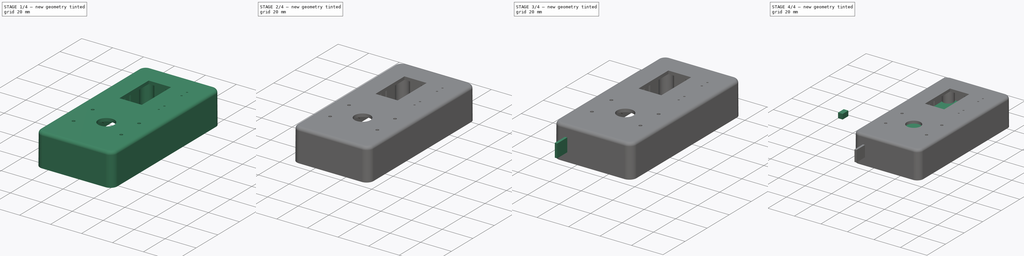
[diagram: build sequence overview — one tinted view per stage of 4, left to right]
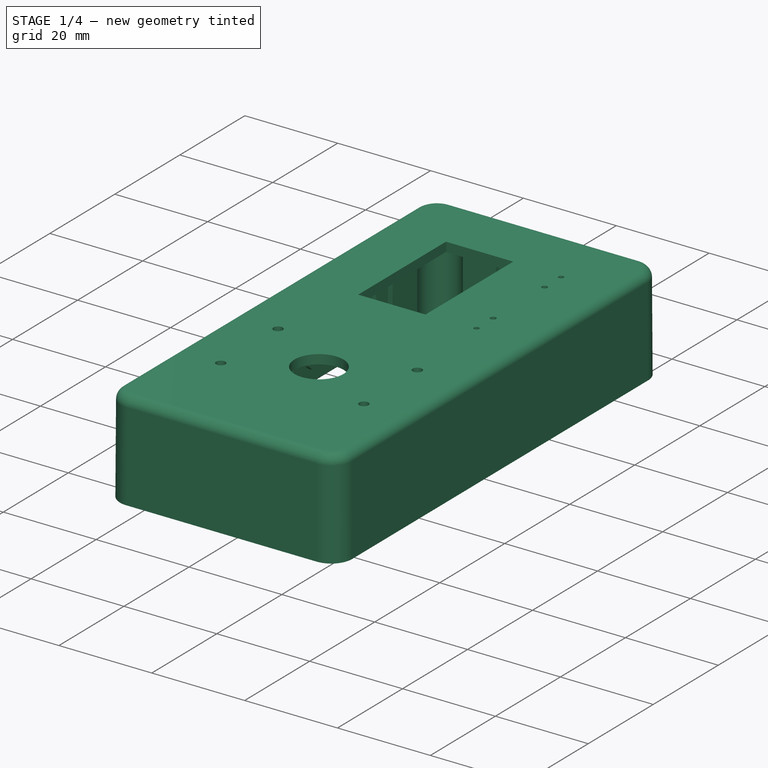
[diagram: stage 1 of 4 — iso view after this stage's code; geometry added in this stage tinted green]
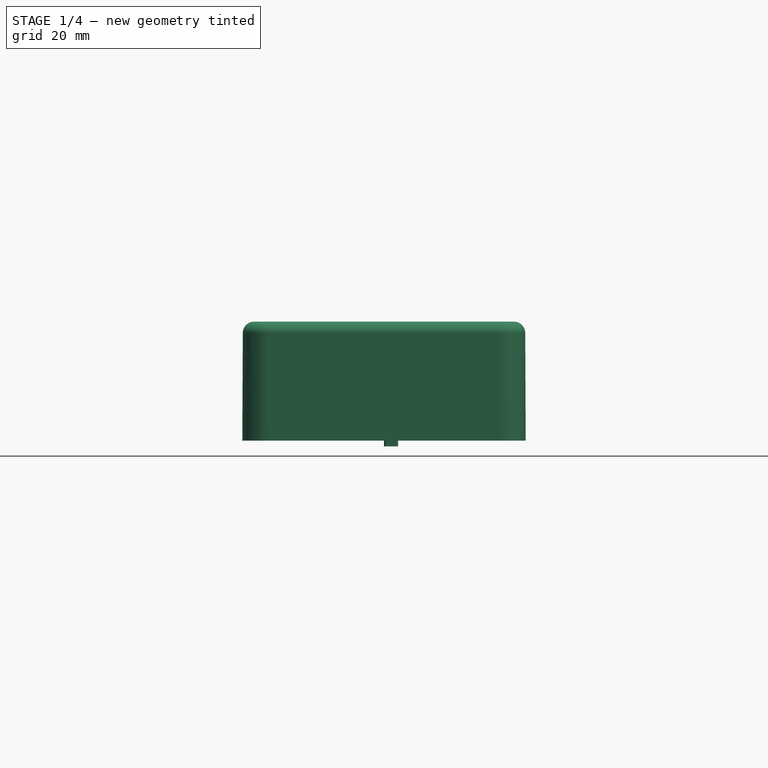
[diagram: stage 1 of 4 — front view after this stage's code; geometry added in this stage tinted green]
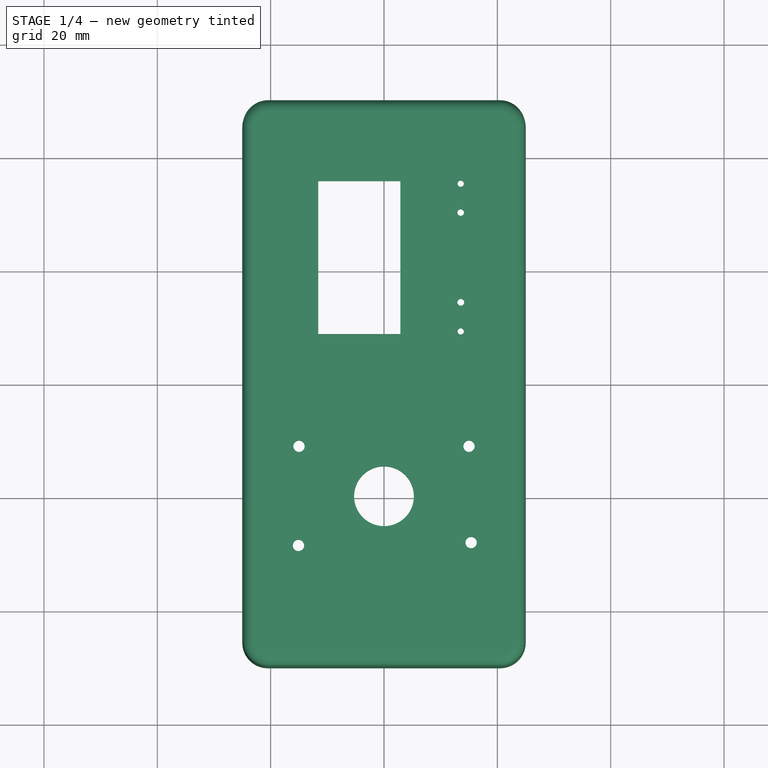
[diagram: stage 1 of 4 — top view after this stage's code; geometry added in this stage tinted green]
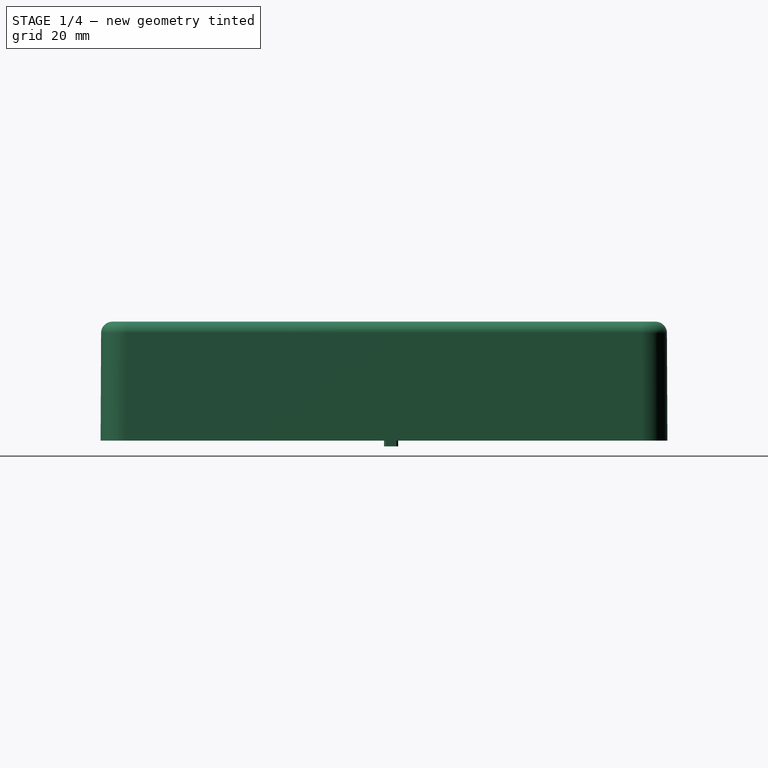
[diagram: stage 1 of 4 — right view after this stage's code; geometry added in this stage tinted green]
FCSTD DOCUMENT  (FreeCAD 0.16R6612 (Git))
Label: Layout_landscape
License: All rights reserved
LicenseURL: http://en.wikipedia.org/wiki/All_rights_reserved
objects: Part::Feature×20, Sketcher::SketchObject×8, PartDesign::Pad×7, App::DocumentObjectGroup×4, PartDesign::Chamfer×3, Part::Part2DObjectPython×1, PartDesign::Pocket×1
note: 48 computed .brp shape members not serialized (recipe doc carries the construction recipe); baked Part::Feature solids carry a one-line shape summary decoded from their .brp

FEATURE [Part::Feature] Pad002001002001003002001  label="header001"
  Placement = pos=(-1,81.55,9) rot=(0,0,1;1.5708rad)
  shape: bbox 1.5 x 9.143 x 8.5 mm, 6 faces (baked)
FEATURE [Part::Feature] Pocket002001  label="Pocket003"
  Placement = pos=(70.0631,76.8505,36.1887) rot=(0,0,1;3.14159rad)
  shape: bbox 17.5 x 30.5 x 4.75 mm, 16 faces (baked)
FEATURE [Part::Feature] Pocket003001  label="button_rect_A"
  Placement = pos=(11.6,8.62,22) rot=(0,0,1;0rad)
  shape: bbox 3.5 x 6.1 x 14.45 mm, 48 faces (baked)
FEATURE [Part::Feature] Pocket003001001  label="button_rect_B"
  Placement = pos=(11.6,29.52,22) rot=(0,0,1;0rad)
  shape: bbox 3.5 x 6.1 x 14.45 mm, 48 faces (baked)
FEATURE [App::DocumentObjectGroup] Group002  label="Buttons"
  Group = -> [Pocket003001,Pocket003001001]
FEATURE [Part::Feature] Chamfer002001  label="Chamfer003"
  shape: bbox 2.5 x 2.5 x 10.5 mm, 28 faces (baked)
FEATURE [Sketcher::SketchObject] Sketch005
  sketch-geometry (4):
    g0: LineSegment StartX=0 StartY=2.5 StartZ=0 EndX=2.5 EndY=2.5 EndZ=0
    g1: LineSegment StartX=2.5 StartY=2.5 StartZ=0 EndX=2.5 EndY=0 EndZ=0
    g2: LineSegment StartX=2.5 StartY=0 StartZ=0 EndX=0 EndY=0 EndZ=0
    g3: LineSegment StartX=0 StartY=0 StartZ=0 EndX=0 EndY=2.5 EndZ=0
  constraints (11):
    c: Coincident(g0,g1)
    c: Coincident(g1,g2)
    c: Coincident(g2,g3)
    c: Coincident(g3,g0)
    c: Horizontal(g0)
    c: Horizontal(g2)
    c: Vertical(g1)
    c: Vertical(g3)
    c: Coincident(g2,g-1)
    c: DistanceX(g0,g0) = 2.5
    c: DistanceY(g1,g1) = 2.5
FEATURE [PartDesign::Pad] Pad002001002001003002002
  Length = 2.5
  Length2 = 100
  Sketch = -> Sketch005
  Type = 0
FEATURE [PartDesign::Chamfer] Chamfer
  Base = -> Pad002001002001003002002 [Edge8,Edge5,Edge1,Edge2]
  Size = 0.3
FEATURE [Part::Feature] Chamfer002003
  shape: bbox 2.5 x 2.5 x 10.5 mm, 28 faces (baked)
FEATURE [Part::Feature] Fusion008  label="OLED_display"
  Placement = pos=(11.5,8.6171,17.2) rot=(0,0,1;1.5708rad)
  shape: bbox 27.3 x 27 x 10.6 mm, 133 faces (baked)
FEATURE [Sketcher::SketchObject] Sketch008
  Placement = pos=(0,0,22) rot=(0,0,1;0rad)
  Support = -> _591A_Box [Face619]
  expr: Constraints[19] = 34.81 / 2
  sketch-geometry (19):
    g0: LineSegment StartX=-11.5957 StartY=35.6158 StartZ=0 EndX=2.9001 EndY=35.6158 EndZ=0
    g1: LineSegment StartX=2.9001 StartY=35.6158 StartZ=0 EndX=2.9001 EndY=8.63497 EndZ=0
    g2: LineSegment StartX=2.9001 StartY=8.63497 StartZ=0 EndX=-11.5957 EndY=8.63497 EndZ=0
    g3: LineSegment StartX=-11.5957 StartY=8.63497 StartZ=0 EndX=-11.5957 EndY=35.6158 EndZ=0
    g4: Circle CenterX=0 CenterY=-20 CenterZ=0 NormalX=0 NormalY=0 NormalZ=1 Radius=5.27045
    g5: Circle CenterX=13.546 CenterY=9.10826 CenterZ=0 NormalX=0 NormalY=0 NormalZ=1 Radius=0.555368
    g6: Circle CenterX=13.546 CenterY=14.2398 CenterZ=0 NormalX=0 NormalY=0 NormalZ=1 Radius=0.600124
    g7: Circle CenterX=13.535 CenterY=30.0728 CenterZ=0 NormalX=0 NormalY=0 NormalZ=1 Radius=0.583124
    g8: Circle CenterX=13.535 CenterY=35.1671 CenterZ=0 NormalX=0 NormalY=0 NormalZ=1 Radius=0.552354
    g9: LineSegment [constr] StartX=13.535 StartY=35.1671 StartZ=0 EndX=13.535 EndY=30.0728 EndZ=0
    g10: LineSegment [constr] StartX=13.546 StartY=14.2398 StartZ=0 EndX=13.546 EndY=9.10826 EndZ=0
    g11: Circle [constr] CenterX=0 CenterY=-20 CenterZ=0 NormalX=0 NormalY=0 NormalZ=1 Radius=11.5
    g12: Circle [constr] CenterX=0 CenterY=-20 CenterZ=0 NormalX=0 NormalY=0 NormalZ=1 Radius=18.405
    g13: Circle [constr] CenterX=0 CenterY=-20 CenterZ=0 NormalX=0 NormalY=0 NormalZ=1 Radius=17.405
    g14: Circle CenterX=-15 CenterY=-11.172 CenterZ=0 NormalX=0 NormalY=0 NormalZ=1 Radius=1
    g15: Circle CenterX=-15.0909 CenterY=-28.6717 CenterZ=0 NormalX=0 NormalY=0 NormalZ=1 Radius=1
    g16: Circle CenterX=15 CenterY=-11.172 CenterZ=0 NormalX=0 NormalY=0 NormalZ=1 Radius=1
    g17: Circle CenterX=15.3694 CenterY=-28.168 CenterZ=0 NormalX=0 NormalY=0 NormalZ=1 Radius=1
    g18: LineSegment [constr] StartX=-15 StartY=-11.172 StartZ=0 EndX=15 EndY=-11.172 EndZ=0
  constraints (36):
    c: Coincident(g0,g1)
    c: Coincident(g1,g2)
    c: Coincident(g2,g3)
    c: Coincident(g3,g0)
    c: Horizontal(g0)
    c: Horizontal(g2)
    c: Vertical(g1)
    c: Vertical(g3)
    c: Coincident(g9,g8)
    c: Coincident(g9,g7)
    c: Vertical(g9)
    c: Coincident(g10,g6)
    c: Coincident(g10,g5)
    c: Vertical(g10)
    c: Coincident(g11,g4)
    c: Radius(g11) = 11.5
    c: Coincident(g12,g4)
    c: Radius(g12) = 18.405
    c: Coincident(g13,g4)
    c: Radius(g13) = 17.405
    c: PointOnObject(g14,g13)
    c: Radius(g14) = 1  'data_in'
    c: PointOnObject(g15,g13)
    c: Radius(g15) = 1  'data_out'
    c: Distance(g15,g14) = 17.5
    c: PointOnObject(g16,g13)
    c: Radius(g16) = 1  'ground'
    c: PointOnObject(g17,g13)
    c: Radius(g17) = 1  'vin'
    c: Distance(g14,g16) = 30
    c: Distance(g17,g16) = 17
    c: PointOnObject(g4,g-2)
    c: DistanceY(g4,g-1) = 20
    c: Coincident(g18,g14)
    c: Coincident(g18,g16)
    c: Horizontal(g18)
FEATURE [PartDesign::Pocket] Pocket
  Length = 5
  Placement = pos=(0,0,1) rot=(1,0,0;3.14159rad)
  Sketch = -> Sketch008
  Type = 1
FEATURE [App::DocumentObjectGroup] Group  label="Box"
  Group = -> [_591A_Lid,_591A_Box,Pocket]
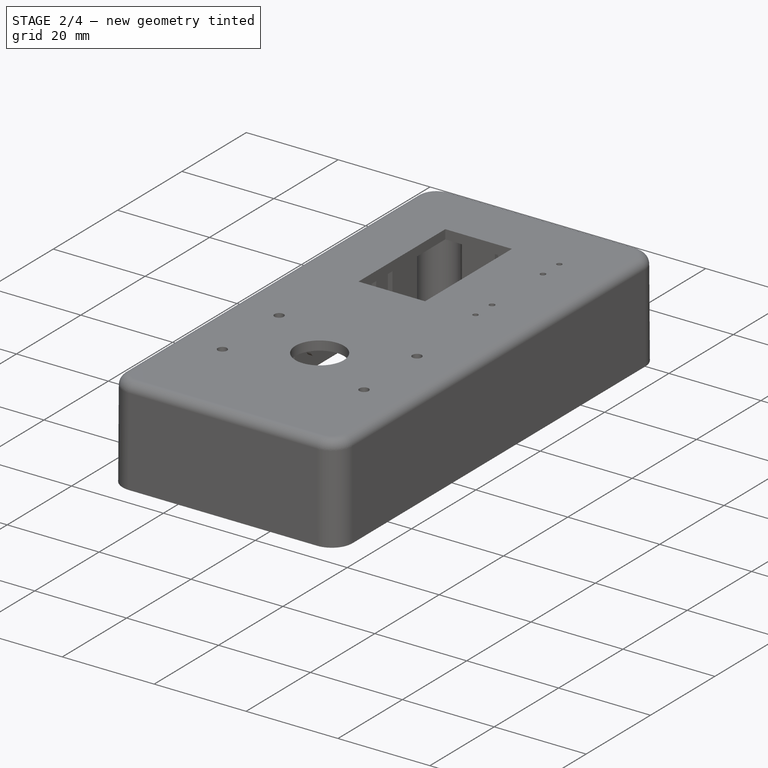
[diagram: stage 2 of 4 — iso view after this stage's code; geometry added in this stage tinted green]
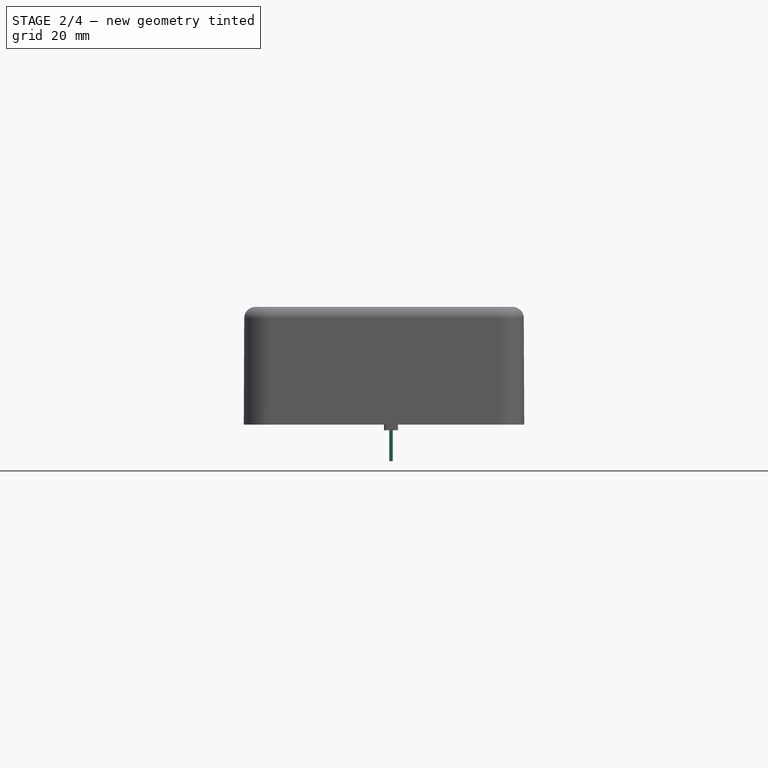
[diagram: stage 2 of 4 — front view after this stage's code; geometry added in this stage tinted green]
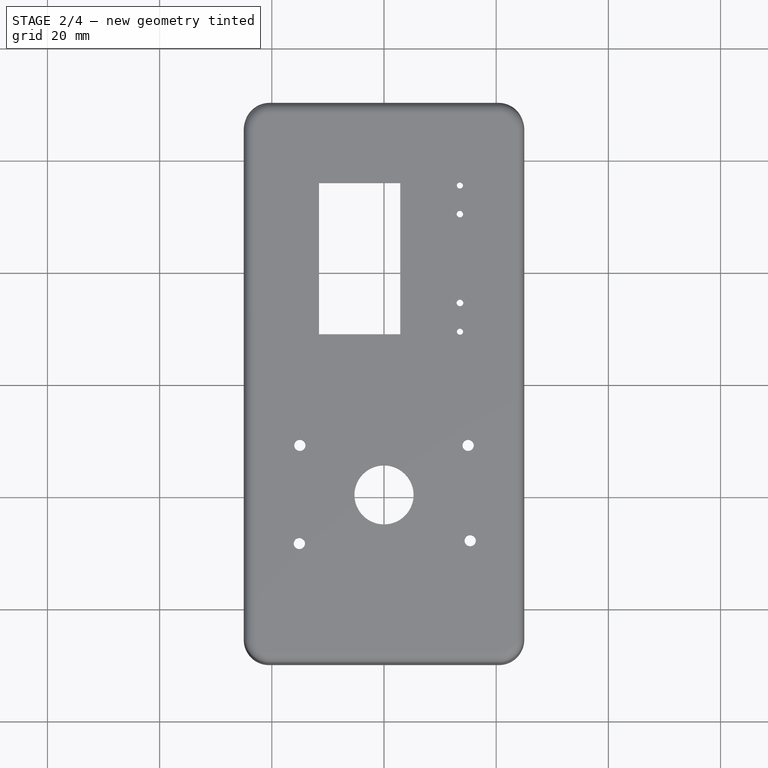
[diagram: stage 2 of 4 — top view after this stage's code; geometry added in this stage tinted green]
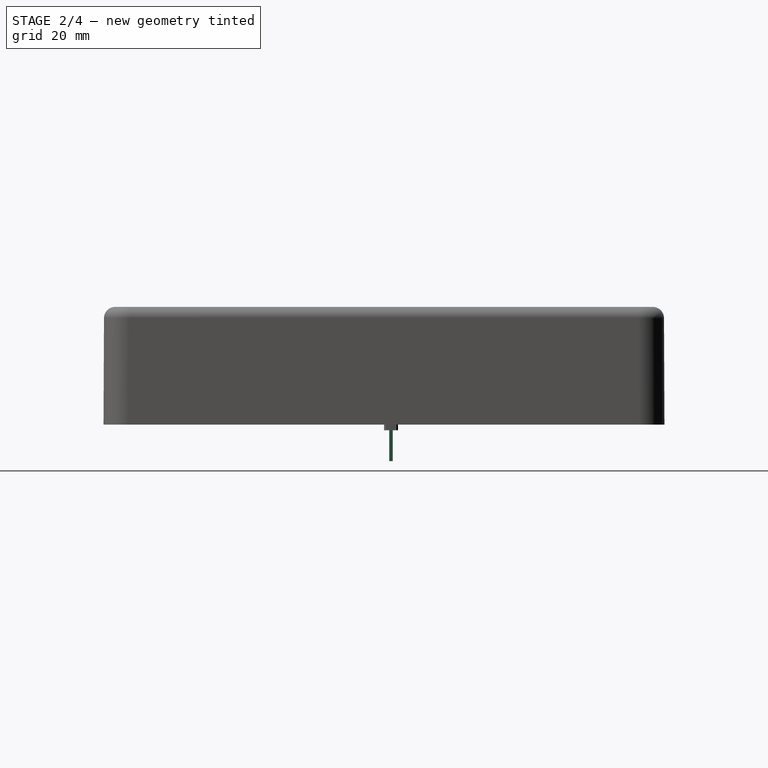
[diagram: stage 2 of 4 — right view after this stage's code; geometry added in this stage tinted green]
FEATURE [Sketcher::SketchObject] Sketch006
  ExternalGeometry = -> [Chamfer]
  Placement = pos=(0,0,2.5) rot=(0,0,1;0rad)
  Support = -> Chamfer [Face5]
  sketch-geometry (8):
    g0: GeomPoint [constr] X=1.25 Y=2.5 Z=0
    g1: LineSegment [constr] StartX=1.25 StartY=2.5 StartZ=0 EndX=1.25 EndY=0.215171 EndZ=0
    g2: GeomPoint [constr] X=2.5 Y=1.25 Z=0
    g3: LineSegment [constr] StartX=2.5 StartY=1.25 StartZ=0 EndX=1.25 EndY=1.25 EndZ=0
    g4: LineSegment StartX=0.93 StartY=1.57 StartZ=0 EndX=1.57 EndY=1.57 EndZ=0
    g5: LineSegment StartX=1.57 StartY=1.57 StartZ=0 EndX=1.57 EndY=0.93 EndZ=0
    g6: LineSegment StartX=1.57 StartY=0.93 StartZ=0 EndX=0.93 EndY=0.93 EndZ=0
    g7: LineSegment StartX=0.93 StartY=0.93 StartZ=0 EndX=0.93 EndY=1.57 EndZ=0
  constraints (18):
    c: Symmetric(g-3,g-3,g0)
    c: Coincident(g1,g0)
    c: Vertical(g1)
    c: Symmetric(g-5,g-5,g2)
    c: Coincident(g3,g2)
    c: PointOnObject(g3,g1)
    c: Horizontal(g3)
    c: Coincident(g4,g5)
    c: Coincident(g5,g6)
    c: Coincident(g6,g7)
    c: Coincident(g7,g4)
    c: Horizontal(g4)
    c: Horizontal(g6)
    c: Vertical(g5)
    c: Vertical(g7)
    c: DistanceY(g7,g7) = 0.64
    c: DistanceX(g4,g4) = 0.64
    c: Symmetric(g6,g4,g3)
FEATURE [PartDesign::Pad] Pad002001002001003002003
  Length = 2.5
  Length2 = 100
  Sketch = -> Sketch006
  Type = 0
FEATURE [PartDesign::Chamfer] Chamfer002002
  Base = -> Pad002001002001003002003 [Edge1,Edge2,Edge3,Edge4]
  Size = 0.1
FEATURE [Sketcher::SketchObject] Sketch007
  ExternalGeometry = -> [Chamfer002002]
  Placement = pos=(0,0,0) rot=(1,0,0;3.14159rad)
  Support = -> Chamfer002002 [Face19]
  sketch-geometry (8):
    g0: GeomPoint [constr] X=2.5 Y=-1.25 Z=0
    g1: GeomPoint [constr] X=1.25 Y=-2.5 Z=0
    g2: LineSegment [constr] StartX=1.25 StartY=-2.5 StartZ=0 EndX=1.25 EndY=-0.861225 EndZ=0
    g3: LineSegment [constr] StartX=2.5 StartY=-1.25 StartZ=0 EndX=1.25 EndY=-1.25 EndZ=0
    g4: LineSegment StartX=0.93 StartY=-0.93 StartZ=0 EndX=1.57 EndY=-0.93 EndZ=0
    g5: LineSegment StartX=1.57 StartY=-0.93 StartZ=0 EndX=1.57 EndY=-1.57 EndZ=0
    g6: LineSegment StartX=1.57 StartY=-1.57 StartZ=0 EndX=0.93 EndY=-1.57 EndZ=0
    g7: LineSegment StartX=0.93 StartY=-1.57 StartZ=0 EndX=0.93 EndY=-0.93 EndZ=0
  constraints (18):
    c: Symmetric(g-4,g-4,g0)
    c: Symmetric(g-3,g-3,g1)
    c: Coincident(g2,g1)
    c: Vertical(g2)
    c: Coincident(g3,g0)
    c: PointOnObject(g3,g2)
    c: Horizontal(g3)
    c: Coincident(g4,g5)
    c: Coincident(g5,g6)
    c: Coincident(g6,g7)
    c: Coincident(g7,g4)
    c: Horizontal(g4)
    c: Horizontal(g6)
    c: Vertical(g5)
    c: Vertical(g7)
    c: DistanceX(g4,g4) = 0.64
    c: DistanceY(g5,g5) = 0.64
    c: Symmetric(g6,g4,g3)
FEATURE [PartDesign::Pad] Pad002
  Length = 5.5
  Length2 = 100
  Sketch = -> Sketch007
  Type = 0
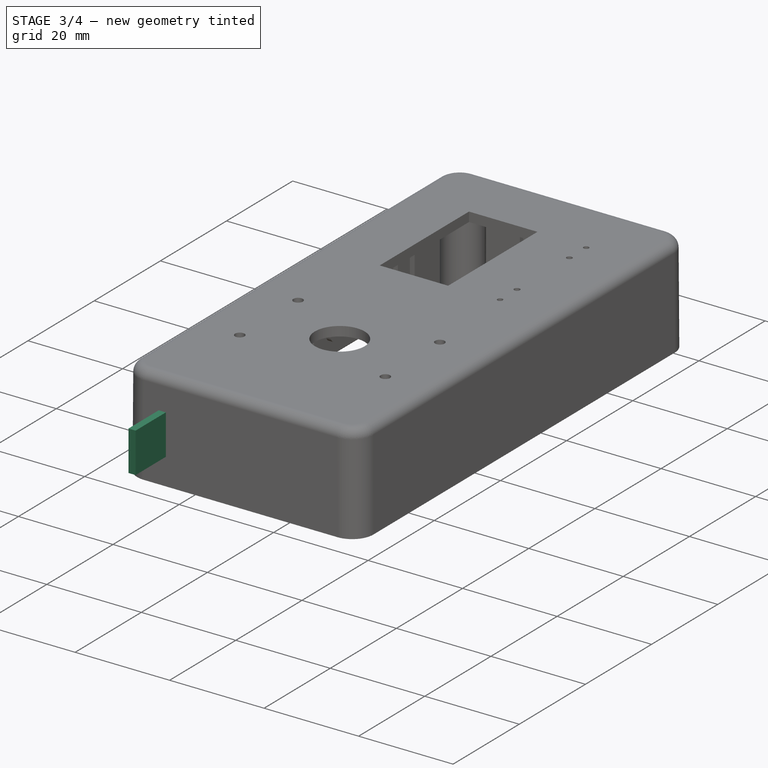
[diagram: stage 3 of 4 — iso view after this stage's code; geometry added in this stage tinted green]
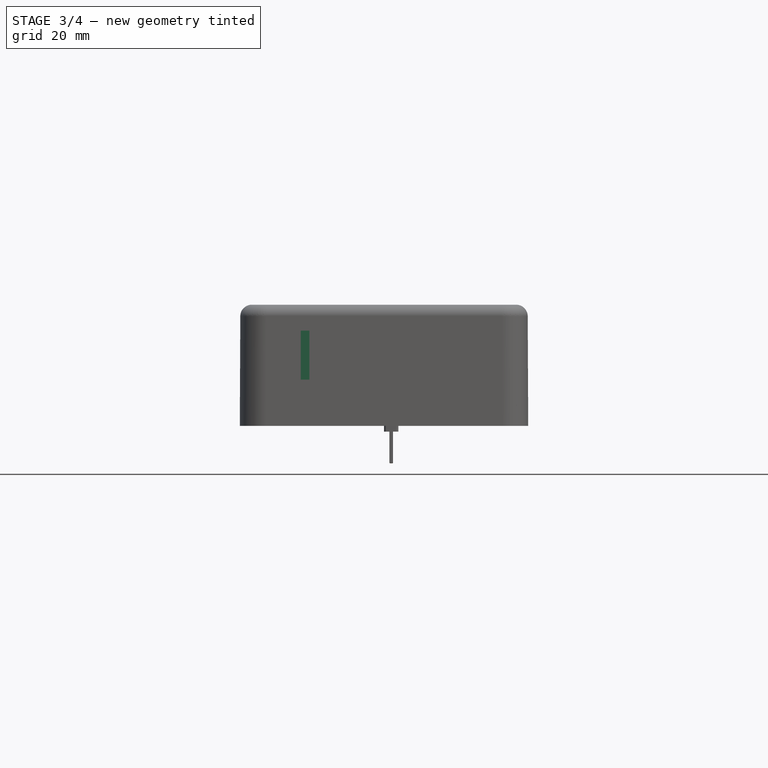
[diagram: stage 3 of 4 — front view after this stage's code; geometry added in this stage tinted green]
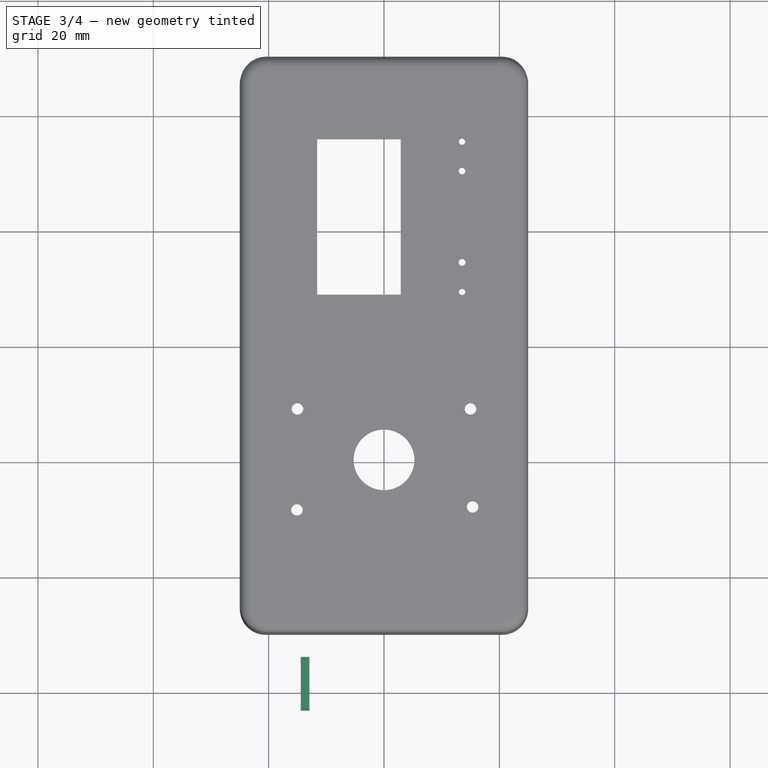
[diagram: stage 3 of 4 — top view after this stage's code; geometry added in this stage tinted green]
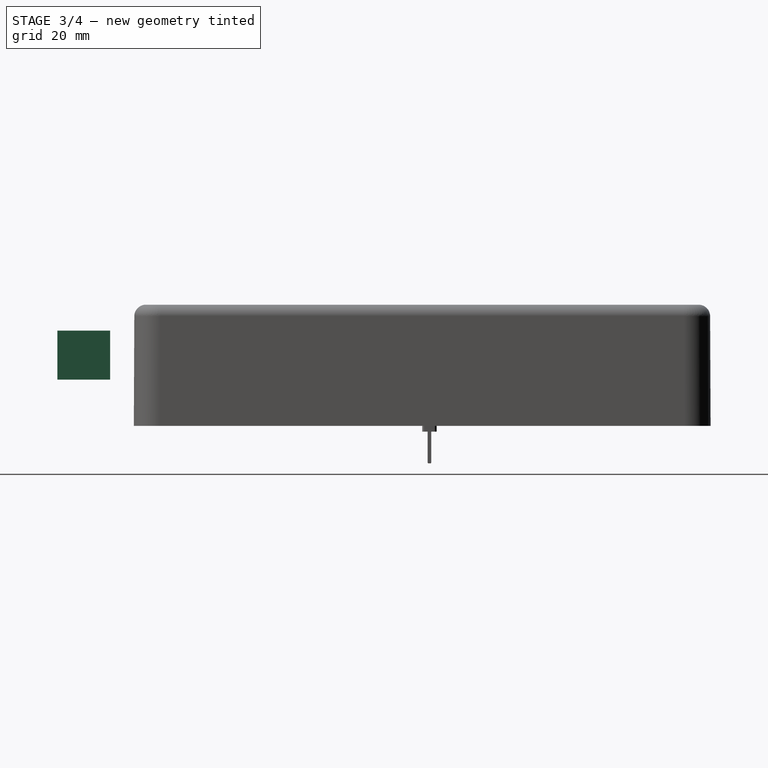
[diagram: stage 3 of 4 — right view after this stage's code; geometry added in this stage tinted green]
FEATURE [Part::Feature] Pad002001002001003001  label="Pad002001002001004"
  Placement = pos=(0.4,0,3.7) rot=(0,0,1;0rad)
  shape: bbox 1.5 x 2.9 x 1.5 mm, 6 faces (baked)
FEATURE [Part::Feature] Fillet001001  label="Fillet002"
  Placement = pos=(-15,-8,0) rot=(0,0,1;0rad)
  shape: bbox 30 x 48 x 5.3 mm, 12 faces (baked)
FEATURE [Sketcher::SketchObject] Sketch004
  Placement = pos=(0,0,9) rot=(0,0,1;1.5708rad)
  sketch-geometry (4):
    g0: LineSegment StartX=-63.2551 StartY=14.4324 StartZ=0 EndX=-54.1124 EndY=14.4324 EndZ=0
    g1: LineSegment StartX=-54.1124 StartY=14.4324 StartZ=0 EndX=-54.1124 EndY=12.9324 EndZ=0
    g2: LineSegment StartX=-54.1124 StartY=12.9324 StartZ=0 EndX=-63.2551 EndY=12.9324 EndZ=0
    g3: LineSegment StartX=-63.2551 StartY=12.9324 StartZ=0 EndX=-63.2551 EndY=14.4324 EndZ=0
  constraints (9):
    c: Coincident(g0,g1)
    c: Coincident(g1,g2)
    c: Coincident(g2,g3)
    c: Coincident(g3,g0)
    c: Horizontal(g0)
    c: Horizontal(g2)
    c: Vertical(g1)
    c: Vertical(g3)
    c: DistanceY(g1,g1) = 1.5
FEATURE [PartDesign::Pad] Pad002001002001003002  label="header"
  Length = 8.5
  Length2 = 100
  Placement = pos=(0,0,9) rot=(0,0,1;1.5708rad)
  Sketch = -> Sketch004
  Type = 0
FEATURE [PartDesign::Chamfer] Chamfer002
  Base = -> Pad002 [Edge1,Edge2,Edge3,Edge4]
  Size = 0.1
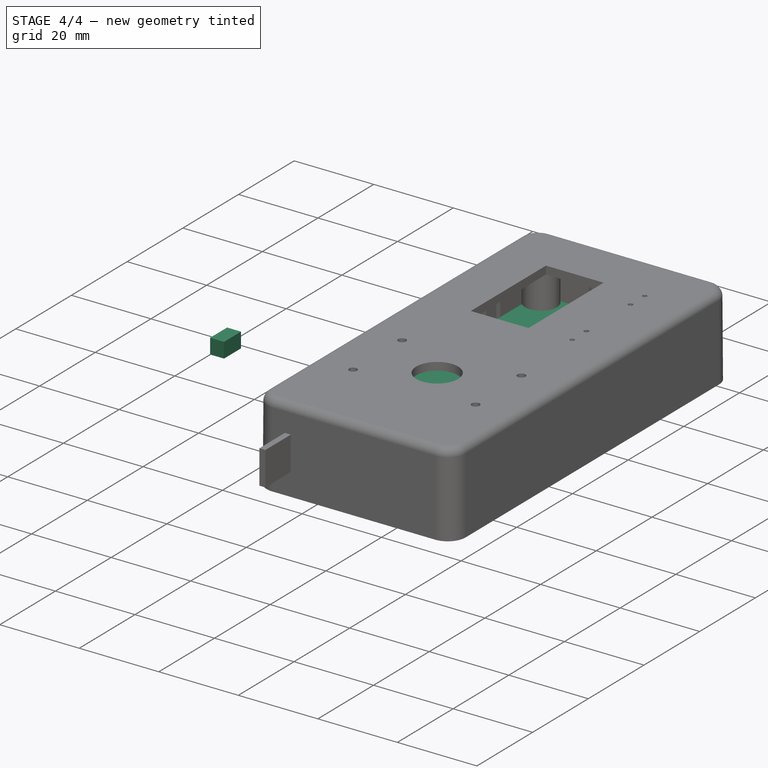
[diagram: stage 4 of 4 — iso view after this stage's code; geometry added in this stage tinted green]
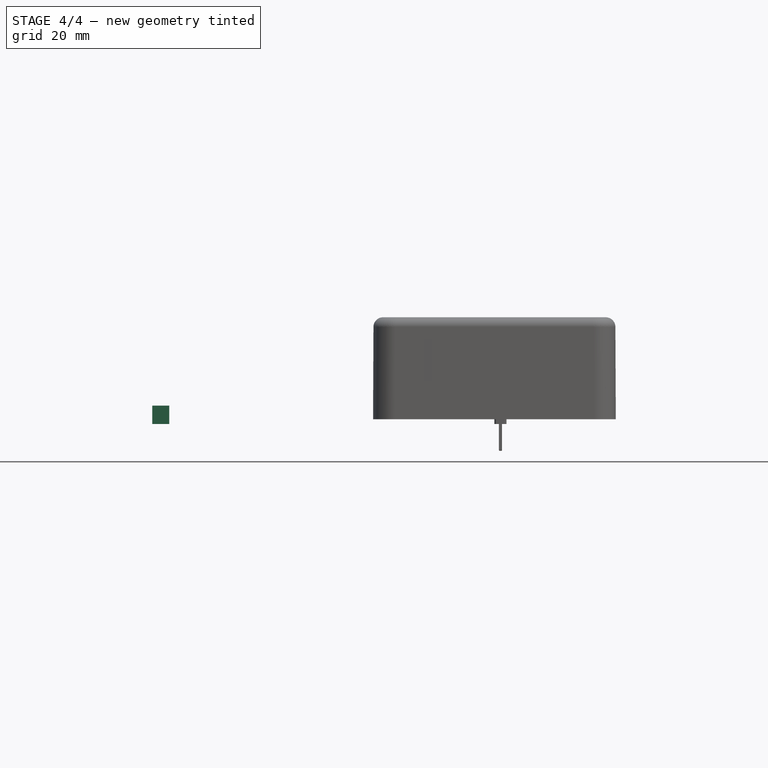
[diagram: stage 4 of 4 — front view after this stage's code; geometry added in this stage tinted green]
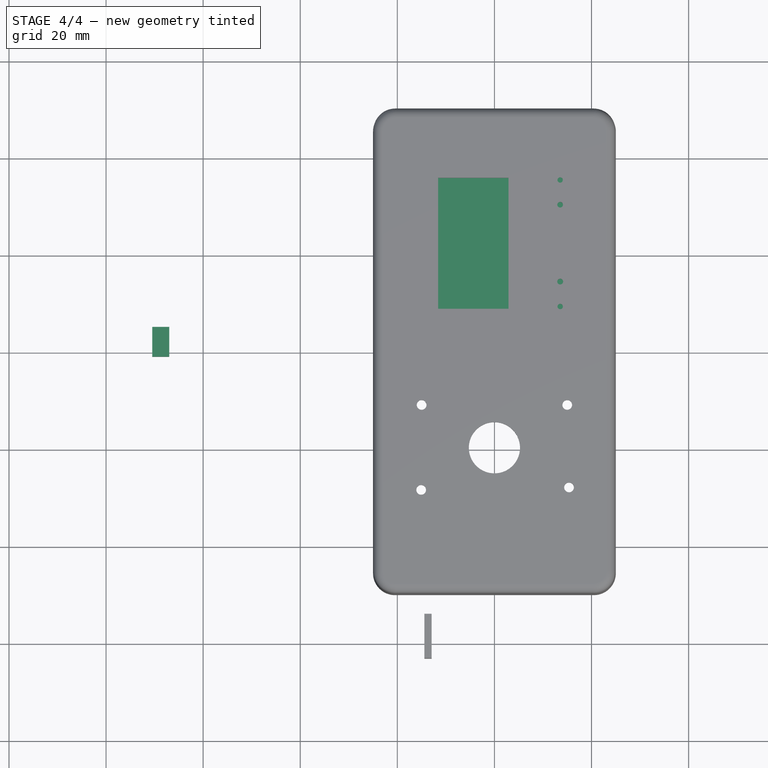
[diagram: stage 4 of 4 — top view after this stage's code; geometry added in this stage tinted green]
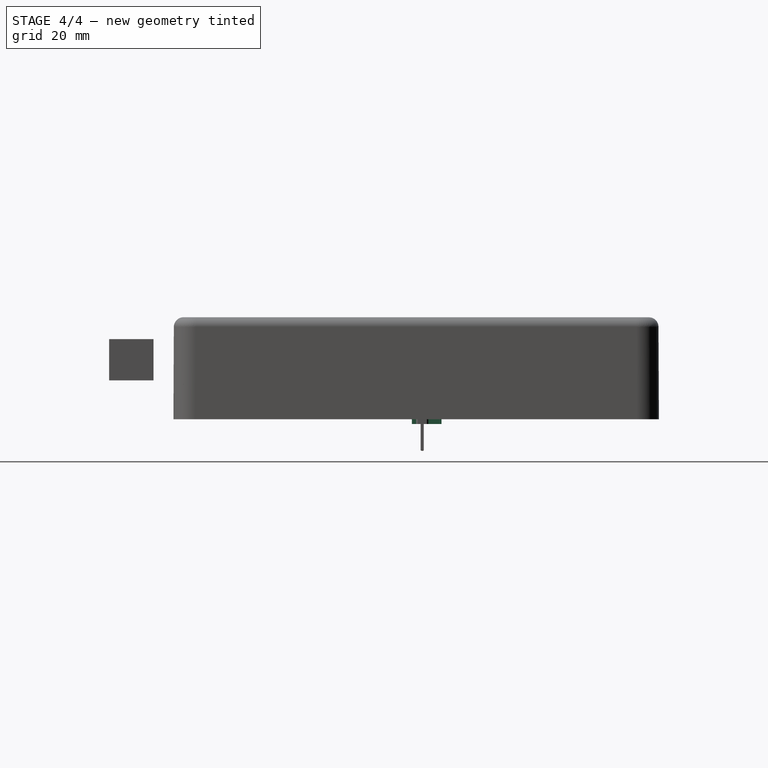
[diagram: stage 4 of 4 — right view after this stage's code; geometry added in this stage tinted green]
FEATURE [Part::Feature] _591A_Box
  Placement = pos=(0,0,1) rot=(1,0,0;3.14159rad)
  shape: bbox 50 x 100 x 21.01 mm, 623 faces (baked)
FEATURE [Part::Feature] _591A_Lid
  Placement = pos=(0,0,1) rot=(0,0,1;1.5708rad)
  shape: bbox 50 x 100 x 5.8 mm, 112 faces (baked)
FEATURE [Part::Feature] MultiTransform001
  Placement = pos=(1,1,16) rot=(0,0,1;0rad)
  shape: bbox 56 x 103 x 0.1 mm, 908 faces (baked)
FEATURE [Part::Feature] Pocket001
  shape: bbox 12 x 12 x 9.3 mm, 21 faces (baked)
FEATURE [Part::Feature] Array001
  shape: bbox 14.1 x 6 x 4.25 mm, 40 faces, 4 solids (baked)
FEATURE [Part::Feature] Fusion001  label="NeoPixel_Ring"
  Placement = pos=(0,-20,22) rot=(0,0,1;0rad)
  shape: bbox 37 x 37 x 1.5 mm, 388 faces (baked)
FEATURE [Part::Feature] Fusion003  label="rotary_encoder"
  Placement = pos=(-6.6,-27,14) rot=(0,0,1;0rad)
  shape: bbox 15.5 x 14.01 x 20.25 mm, 49 faces, 6 solids (baked)
FEATURE [Part::Part2DObjectPython] Line  # Draft 2D object (typed FeaturePython)
  ChamferSize = 0
  Closed = false
  End = (25,0,0)
  FilletRadius = 0
  Length = 50
  MakeFace = true
  Points = (2) [(-25,-1.53081e-15,0),(25,1.53081e-15,0)]
  Start = (-25,0,0)
  Subdivisions = 0
FEATURE [App::DocumentObjectGroup] Group003  label="Construction"
  Group = -> [Line]
FEATURE [Part::Feature] Fusion004  label="500mAh LiPo"
  Placement = pos=(22,45,7) rot=(0,0,1;3.14159rad)
  shape: bbox 44 x 28.08 x 7.45 mm, 21 faces, 3 solids (baked)
FEATURE [Part::Feature] Fusion005  label="Arduino"
  Placement = pos=(9,12,15) rot=(0,0,1;1.5708rad)
  shape: bbox 18.26 x 34.3 x 3.5 mm, 45 faces, 2 solids (baked)
FEATURE [Sketcher::SketchObject] Sketch
  Placement = pos=(0,9,7.4) rot=(0,0,1;0rad)
  sketch-geometry (4):
    g0: LineSegment StartX=-20.9025 StartY=36.9723 StartZ=0 EndX=20.8874 EndY=36.9723 EndZ=0
    g1: LineSegment StartX=20.8874 StartY=36.9723 StartZ=0 EndX=20.8874 EndY=-13.0277 EndZ=0
    g2: LineSegment StartX=20.8874 StartY=-13.0277 StartZ=0 EndX=-20.9025 EndY=-13.0277 EndZ=0
    g3: LineSegment StartX=-20.9025 StartY=-13.0277 StartZ=0 EndX=-20.9025 EndY=36.9723 EndZ=0
  constraints (9):
    c: Coincident(g0,g1)
    c: Coincident(g1,g2)
    c: Coincident(g2,g3)
    c: Coincident(g3,g0)
    c: Horizontal(g0)
    c: Horizontal(g2)
    c: Vertical(g1)
    c: Vertical(g3)
    c: DistanceY(g3,g3) = 50
FEATURE [PartDesign::Pad] Pad
  Length = 1.6
  Length2 = 100
  Placement = pos=(0,9,7.4) rot=(0,0,1;0rad)
  Sketch = -> Sketch
  Type = 0
FEATURE [Part::Feature] Fusion006  label="Sparkfun_Charger"
  Placement = pos=(-20.9,-35,7) rot=(0,0,1;0rad)
  shape: bbox 24 x 23 x 7 mm, 31 faces, 2 solids (baked)
FEATURE [Part::Feature] Pad001
  Placement = pos=(0,0,4.6) rot=(0,0,1;0rad)
  shape: bbox 41.79 x 91.75 x 1.6 mm, 6 faces (baked)
FEATURE [App::DocumentObjectGroup] Group001  label="PCBs"
  Group = -> [MultiTransform001,Pad,Pad001]
FEATURE [Sketcher::SketchObject] Sketch002
  sketch-geometry (4):
    g0: LineSegment StartX=-70.4929 StartY=5.20754 StartZ=0 EndX=-66.9929 EndY=5.20754 EndZ=0
    g1: LineSegment StartX=-66.9929 StartY=5.20754 StartZ=0 EndX=-66.9929 EndY=-0.892464 EndZ=0
    g2: LineSegment StartX=-66.9929 StartY=-0.892464 StartZ=0 EndX=-70.4929 EndY=-0.892464 EndZ=0
    g3: LineSegment StartX=-70.4929 StartY=-0.892464 StartZ=0 EndX=-70.4929 EndY=5.20754 EndZ=0
  constraints (10):
    c: Coincident(g0,g1)
    c: Coincident(g1,g2)
    c: Coincident(g2,g3)
    c: Coincident(g3,g0)
    c: Horizontal(g0)
    c: Horizontal(g2)
    c: Vertical(g1)
    c: Vertical(g3)
    c: DistanceX(g0,g0) = 3.5
    c: DistanceY(g1,g1) = 6.1
FEATURE [PartDesign::Pad] Pad002001002001002
  Length = 3.8
  Length2 = 100
  Sketch = -> Sketch002
  Type = 0
FEATURE [Sketcher::SketchObject] Sketch003
  sketch-geometry (4):
    g0: LineSegment StartX=-69.8997 StartY=3.5161 StartZ=0 EndX=-68.3997 EndY=3.5161 EndZ=0
    g1: LineSegment StartX=-68.3997 StartY=3.5161 StartZ=0 EndX=-68.3997 EndY=0.616103 EndZ=0
    g2: LineSegment StartX=-68.3997 StartY=0.616103 StartZ=0 EndX=-69.8997 EndY=0.616103 EndZ=0
    g3: LineSegment StartX=-69.8997 StartY=0.616103 StartZ=0 EndX=-69.8997 EndY=3.5161 EndZ=0
  constraints (10):
    c: Coincident(g0,g1)
    c: Coincident(g1,g2)
    c: Coincident(g2,g3)
    c: Coincident(g3,g0)
    c: Horizontal(g0)
    c: Horizontal(g2)
    c: Vertical(g1)
    c: Vertical(g3)
    c: DistanceX(g0,g0) = 1.5
    c: DistanceY(g1,g1) = 2.9
FEATURE [PartDesign::Pad] Pad002001002001003
  Length = 1.5
  Length2 = 100
  Sketch = -> Sketch003
  Type = 0
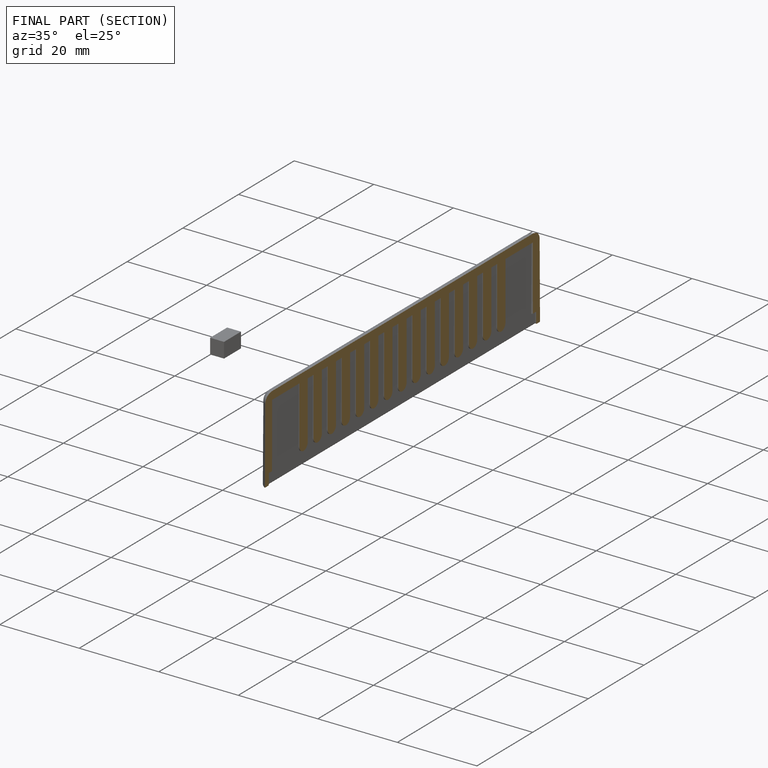
[diagram: finished part — half-section view (interior)]
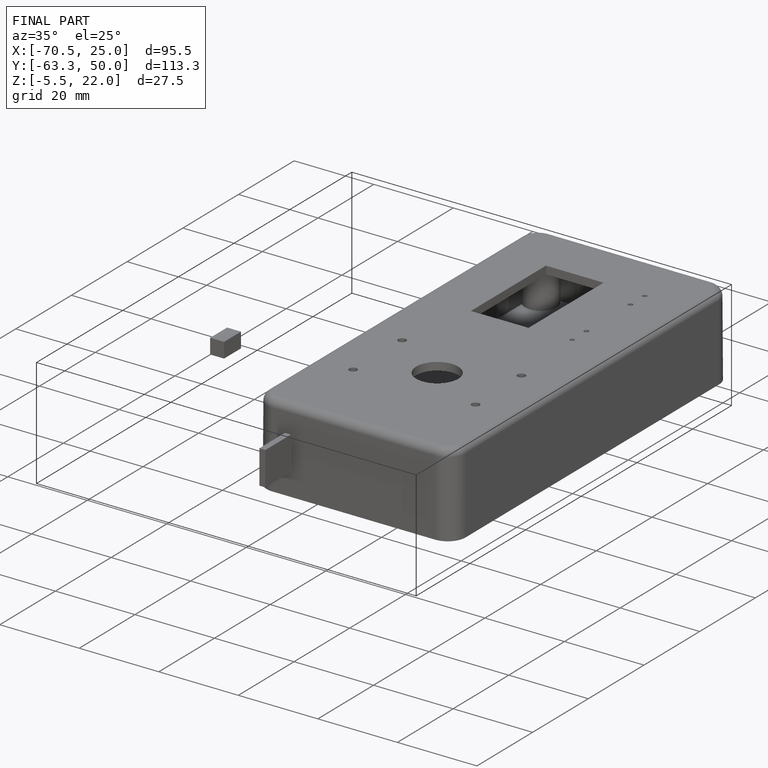
[diagram: finished part — iso view with bounding-box wireframe]
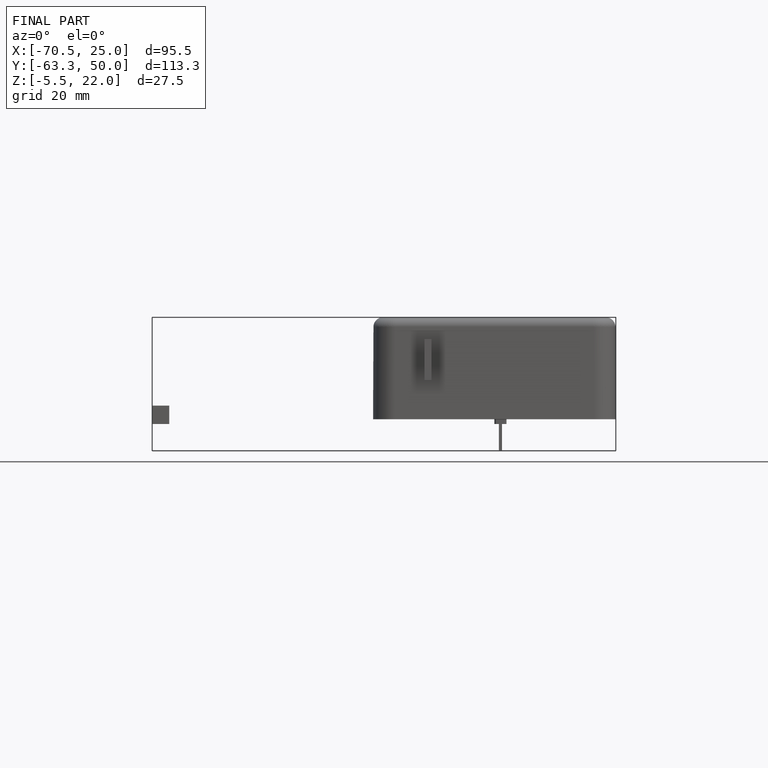
[diagram: finished part — front view with bounding-box wireframe]
